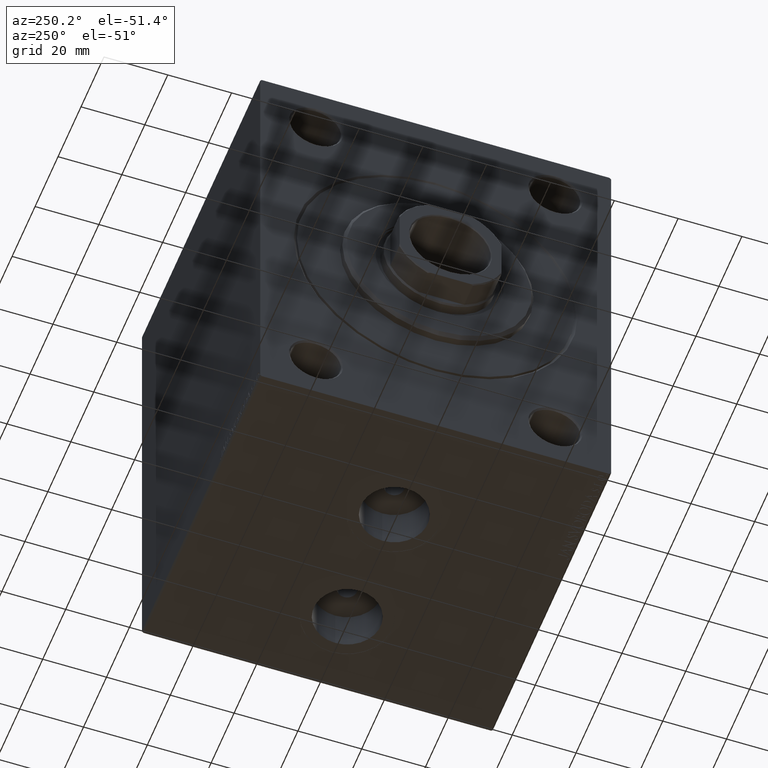
[diagram: clean part render]
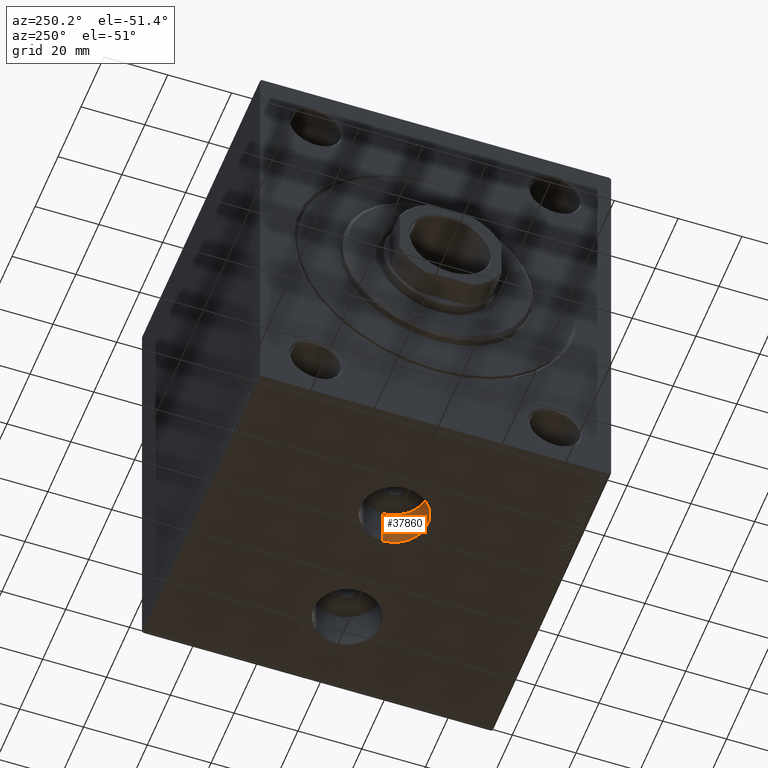
[diagram: same view with one face highlighted and labeled with its STEP entity id]
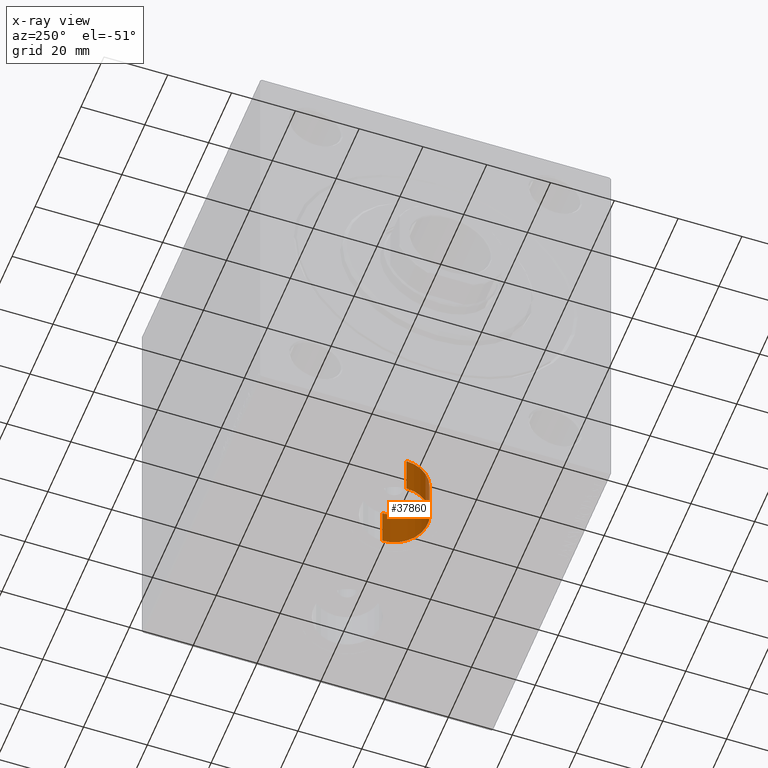
[diagram: x-ray of the same camera — body ghosted, the highlighted face saturated]
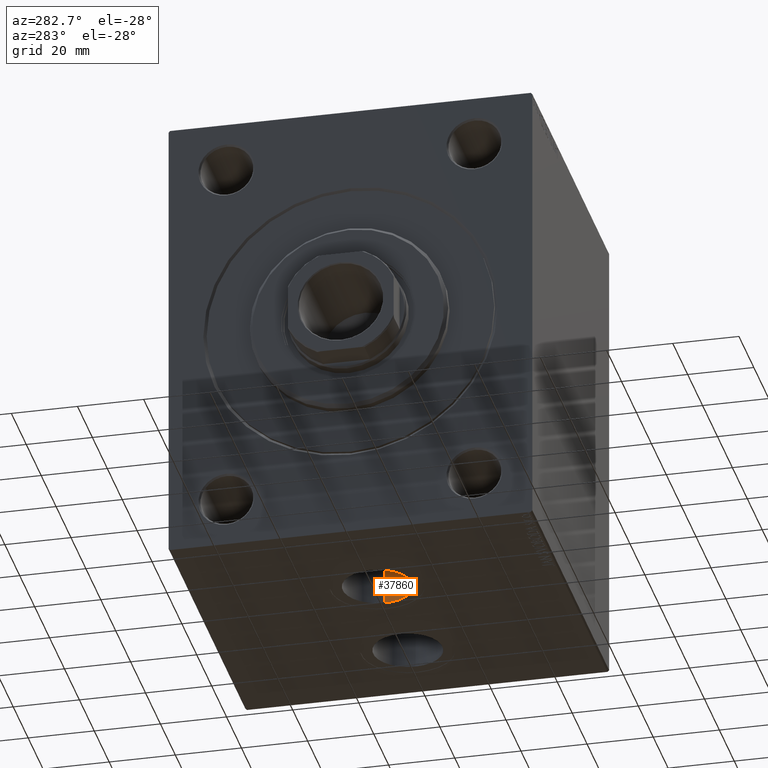
[diagram: same view with one face highlighted and labeled with its STEP entity id]
A machine part, auxiliary view. The second image highlights one B-rep face of the part: STEP entity #37860.
The next image is the same camera in x-ray: the body ghosted, the highlighted face saturated — about 0% of this face is hidden behind the body in this view.
A second angle (auxiliary view) of the same face is appended — the face is thin or edge-on in the first view.
In plain terms, the highlighted cylindrical surface (edge-blend (fillet) strip) has radius 10.48 mm, axis along (-0, -0, -1).
Its self-contained STEP definition (entity closure, byte-faithful):
#1771 = DIRECTION ( 'NONE',  ( -1.000000000000000000, 0.000000000000000000, 0.000000000000000000 ) ) ;
#2422 = VERTEX_POINT ( 'NONE', #26568 ) ;
#2443 = LINE ( 'NONE', #16470, #39091 ) ;
#2703 = ORIENTED_EDGE ( 'NONE', *, *, #7194, .T. ) ;
#2779 = VERTEX_POINT ( 'NONE', #20737 ) ;
#6737 = ORIENTED_EDGE ( 'NONE', *, *, #41186, .T. ) ;
#7194 = EDGE_CURVE ( 'NONE', #2422, #2779, #12922, .T. ) ;
#9122 = DIRECTION ( 'NONE',  ( 0.000000000000000000, 0.000000000000000000, -1.000000000000000000 ) ) ;
#10365 = CYLINDRICAL_SURFACE ( 'NONE', #23764, 10.48000000000000043 ) ;
#10479 = ORIENTED_EDGE ( 'NONE', *, *, #33341, .F. ) ;
#12922 = LINE ( 'NONE', #26491, #30661 ) ;
#14047 = DIRECTION ( 'NONE',  ( -1.000000000000000000, 0.000000000000000000, 0.000000000000000000 ) ) ;
#16470 = CARTESIAN_POINT ( 'NONE',  ( 25.51999999999999602, 4.206130763976431907E-15, -57.00000000000000000 ) ) ;
#19006 = CARTESIAN_POINT ( 'NONE',  ( 36.00000000000000000, 4.206130763976431907E-15, -69.90000000000000568 ) ) ;
#19869 = CIRCLE ( 'NONE', #38961, 10.48000000000000043 ) ;
#20737 = CARTESIAN_POINT ( 'NONE',  ( 46.47999999999999687, 5.489560609482857396E-15, -69.90000000000000568 ) ) ;
#23764 = AXIS2_PLACEMENT_3D ( 'NONE', #28504, #24398, #14047 ) ;
#24398 = DIRECTION ( 'NONE',  ( -0.000000000000000000, -0.000000000000000000, -1.000000000000000000 ) ) ;
#24841 = FACE_OUTER_BOUND ( 'NONE', #26261, .T. ) ;
#26261 = EDGE_LOOP ( 'NONE', ( #39516, #2703, #6737, #10479 ) ) ;
#26491 = CARTESIAN_POINT ( 'NONE',  ( 46.47999999999999687, 5.489560609482857396E-15, -57.00000000000000000 ) ) ;
#26568 = CARTESIAN_POINT ( 'NONE',  ( 46.47999999999999687, 5.489560609482857396E-15, -57.00000000000000000 ) ) ;
#27344 = DIRECTION ( 'NONE',  ( 0.000000000000000000, 0.000000000000000000, -1.000000000000000000 ) ) ;
#27561 = CARTESIAN_POINT ( 'NONE',  ( 36.00000000000000000, 4.206130763976431907E-15, -57.00000000000000000 ) ) ;
#27602 = EDGE_CURVE ( 'NONE', #2422, #41080, #19869, .T. ) ;
#28504 = CARTESIAN_POINT ( 'NONE',  ( 36.00000000000000000, 4.206130763976431907E-15, -57.00000000000000000 ) ) ;
#28823 = VERTEX_POINT ( 'NONE', #31638 ) ;
#30661 = VECTOR ( 'NONE', #40979, 1000.000000000000000 ) ;
#31638 = CARTESIAN_POINT ( 'NONE',  ( 25.51999999999999602, 4.206130763976431907E-15, -69.90000000000000568 ) ) ;
#31819 = CIRCLE ( 'NONE', #37019, 10.48000000000000043 ) ;
#33341 = EDGE_CURVE ( 'NONE', #41080, #28823, #2443, .T. ) ;
#37019 = AXIS2_PLACEMENT_3D ( 'NONE', #19006, #9122, #1771 ) ;
#37860 = ADVANCED_FACE ( 'NONE', ( #24841 ), #10365, .F. ) ;
#38961 = AXIS2_PLACEMENT_3D ( 'NONE', #27561, #27344, #44845 ) ;
#39091 = VECTOR ( 'NONE', #41079, 1000.000000000000000 ) ;
#39516 = ORIENTED_EDGE ( 'NONE', *, *, #27602, .F. ) ;
#40979 = DIRECTION ( 'NONE',  ( -0.000000000000000000, -0.000000000000000000, -1.000000000000000000 ) ) ;
#41079 = DIRECTION ( 'NONE',  ( -0.000000000000000000, -0.000000000000000000, -1.000000000000000000 ) ) ;
#41080 = VERTEX_POINT ( 'NONE', #43165 ) ;
#41186 = EDGE_CURVE ( 'NONE', #2779, #28823, #31819, .T. ) ;
#43165 = CARTESIAN_POINT ( 'NONE',  ( 25.51999999999999602, 4.206130763976431907E-15, -57.00000000000000000 ) ) ;
#44845 = DIRECTION ( 'NONE',  ( -1.000000000000000000, 0.000000000000000000, 0.000000000000000000 ) ) ;